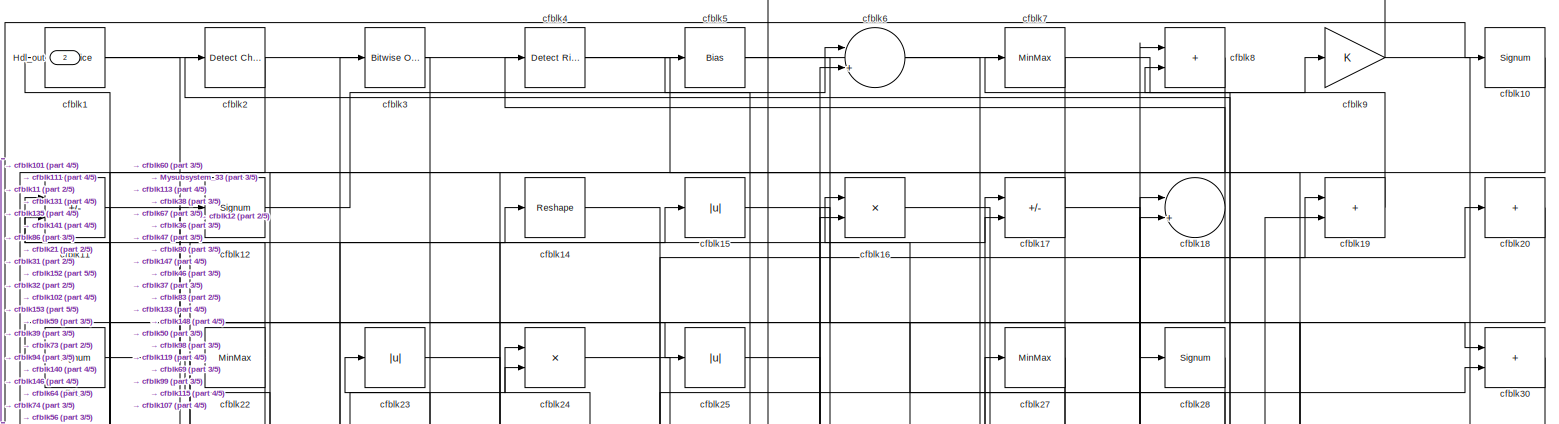
[diagram: root canvas - part 1/5, full width, top band]
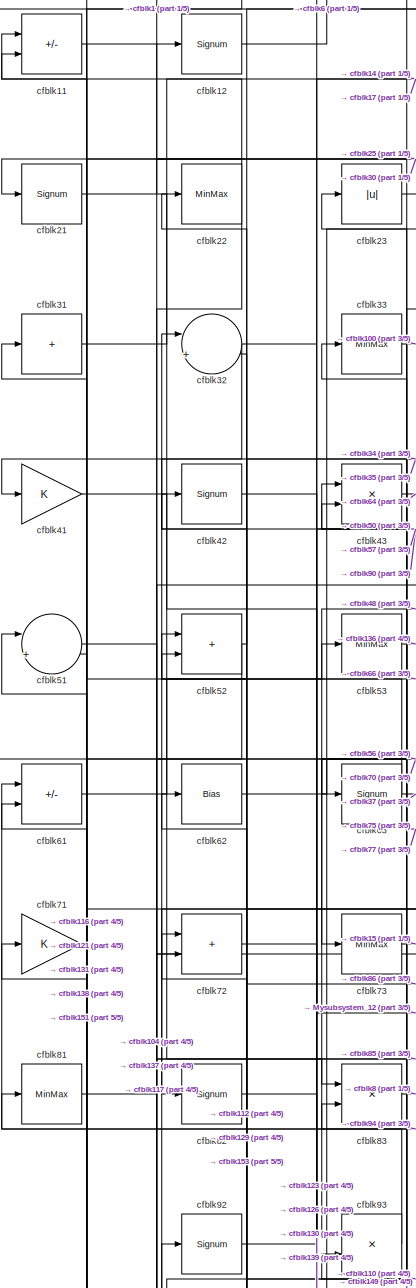
[diagram: root canvas - part 2/5, middle left region]
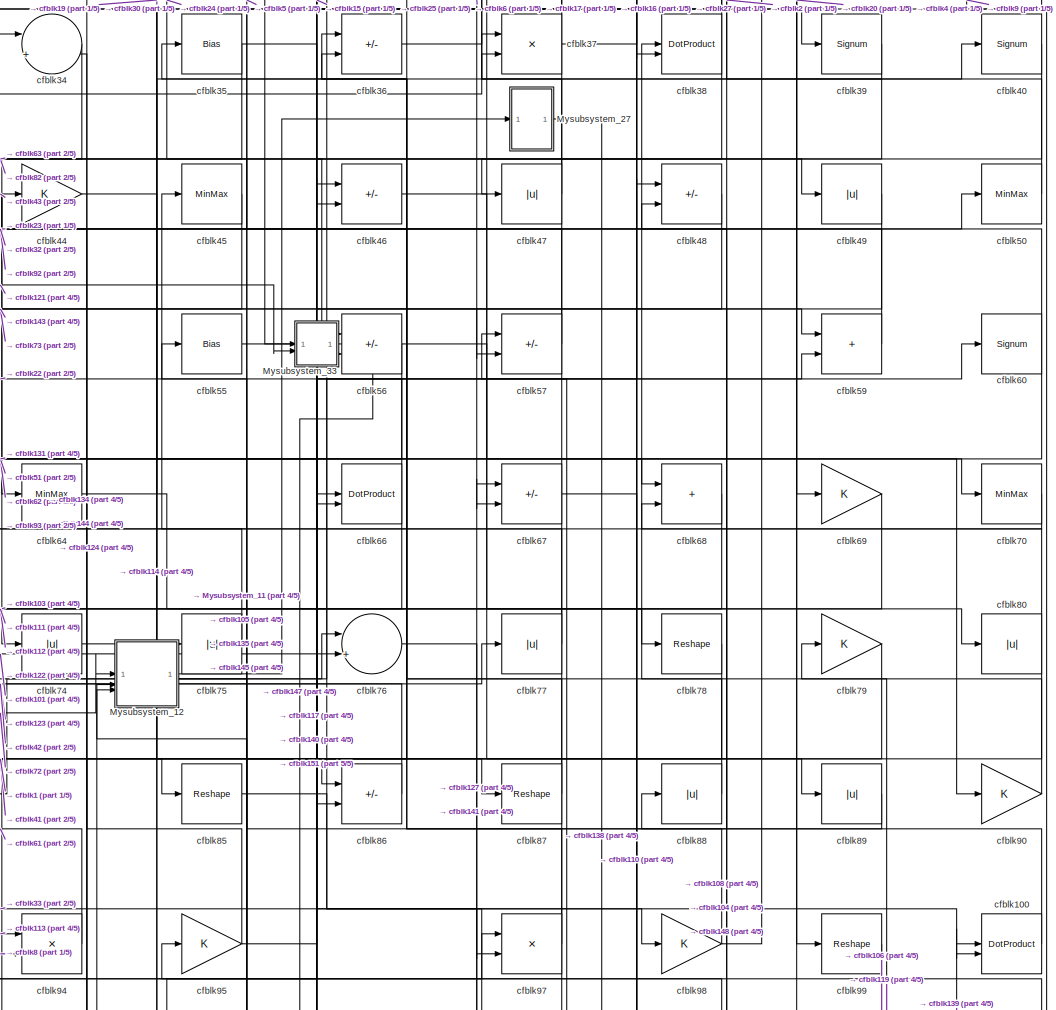
[diagram: root canvas - part 3/5, central region]
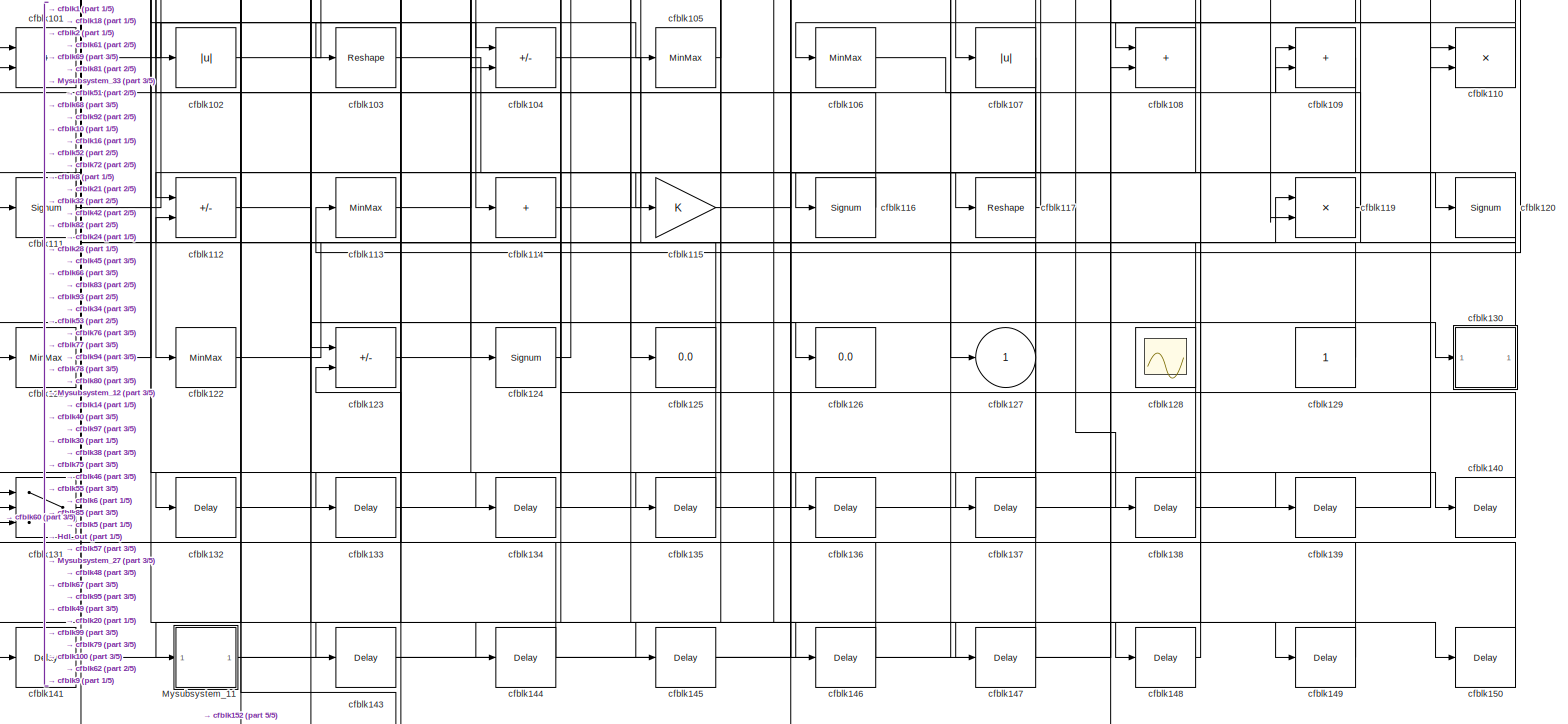
[diagram: root canvas - part 4/5, full width, bottom band]
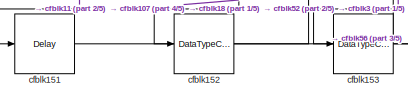
[diagram: root canvas - part 5/5, bottom left region]
MODEL slx_5dc51c0c0933
KIND model
CONFIG AbsTol = auto
CONFIG EnableMultiTasking = off
CONFIG FixedStep = auto
CONFIG MaxStep = auto
CONFIG MinStep = auto
CONFIG RelTol = 1e-3
CONFIG SampleTimeConstraint = Unconstrained
CONFIG SolverName = VariableStepAuto
CONFIG StartTime = 0.0
CONFIG StopTime = 10.0
BLOCK [Outport] Hdl_out
  OutDataTypeStr = uint8
  Port = 2
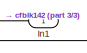
[diagram: Mysubsystem_11 - part 1/3, top center region]
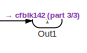
[diagram: Mysubsystem_11 - part 2/3, top right region]
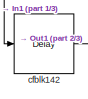
[diagram: Mysubsystem_11 - part 3/3, bottom left region]
BLOCK [SubSystem] Mysubsystem_11
  RTWFcnName = Mysubsystem_11
  RTWFcnNameOpts = User specified
  RTWFileNameOpts = Use function name
  RTWSystemCode = Reusable function
  TreatAsAtomicUnit = on
BLOCK [Inport] Mysubsystem_11/In1
BLOCK [Outport] Mysubsystem_11/Out1
BLOCK [Delay] Mysubsystem_11/cfblk142
  InputPortMap = u0
  SampleTime = 1
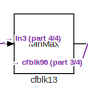
[diagram: Mysubsystem_12 - part 1/4, top left region]
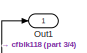
[diagram: Mysubsystem_12 - part 2/4, top right region]
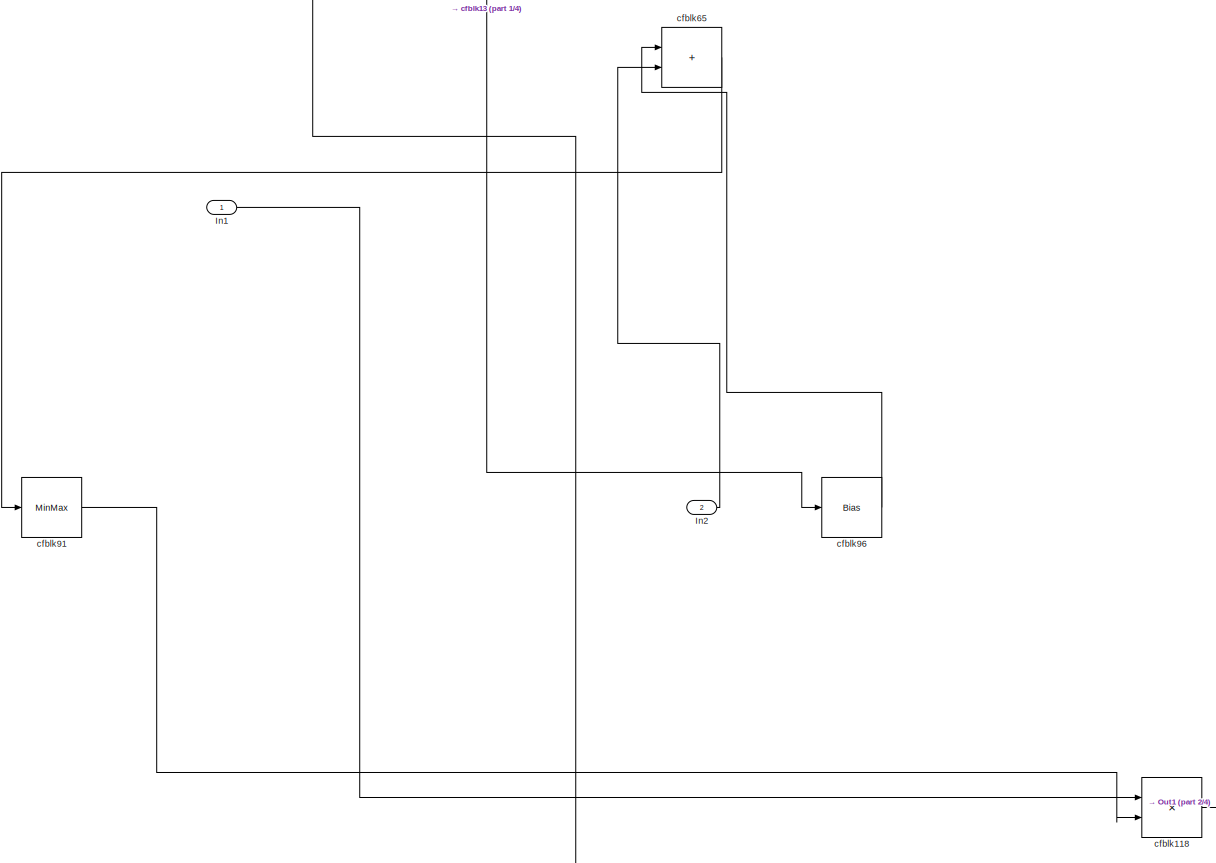
[diagram: Mysubsystem_12 - part 3/4, full width, bottom band]
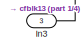
[diagram: Mysubsystem_12 - part 4/4, bottom center region]
BLOCK [SubSystem] Mysubsystem_12
  RTWFcnName = Mysubsystem_12
  RTWFcnNameOpts = User specified
  RTWFileNameOpts = Use function name
  RTWSystemCode = Reusable function
  TreatAsAtomicUnit = on
BLOCK [Inport] Mysubsystem_12/In1
BLOCK [Inport] Mysubsystem_12/In2
  Port = 2
BLOCK [Inport] Mysubsystem_12/In3
  Port = 3
BLOCK [Outport] Mysubsystem_12/Out1
BLOCK [Product] Mysubsystem_12/cfblk118
  Inputs = */
  RndMeth = Zero
  SaturateOnIntegerOverflow = on
BLOCK [MinMax] Mysubsystem_12/cfblk13
BLOCK [Sum] Mysubsystem_12/cfblk65
  IconShape = rectangular
BLOCK [MinMax] Mysubsystem_12/cfblk91
BLOCK [Bias] Mysubsystem_12/cfblk96
  Bias = 0.0
  SaturateOnIntegerOverflow = off
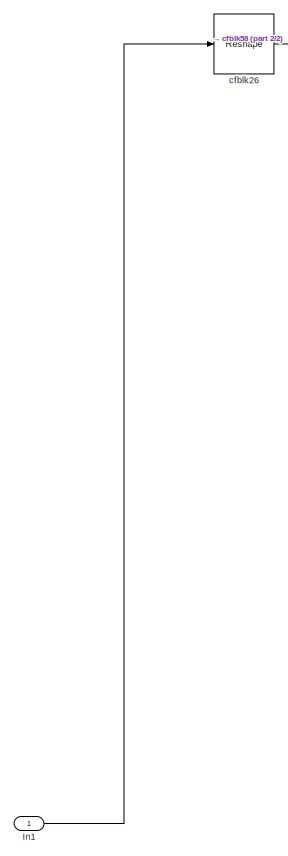
[diagram: Mysubsystem_27 - part 1/2, top left region]
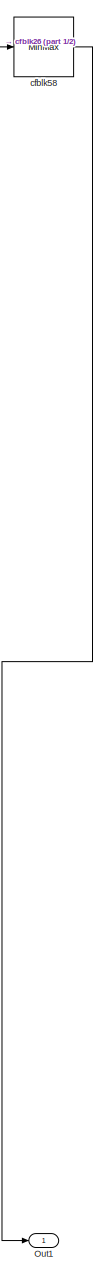
[diagram: Mysubsystem_27 - part 2/2, right side, full height]
BLOCK [SubSystem] Mysubsystem_27
  RTWFcnName = Mysubsystem_27
  RTWFcnNameOpts = User specified
  RTWFileNameOpts = Use function name
  RTWSystemCode = Reusable function
  TreatAsAtomicUnit = on
BLOCK [Inport] Mysubsystem_27/In1
BLOCK [Outport] Mysubsystem_27/Out1
BLOCK [Reshape] Mysubsystem_27/cfblk26
BLOCK [MinMax] Mysubsystem_27/cfblk58
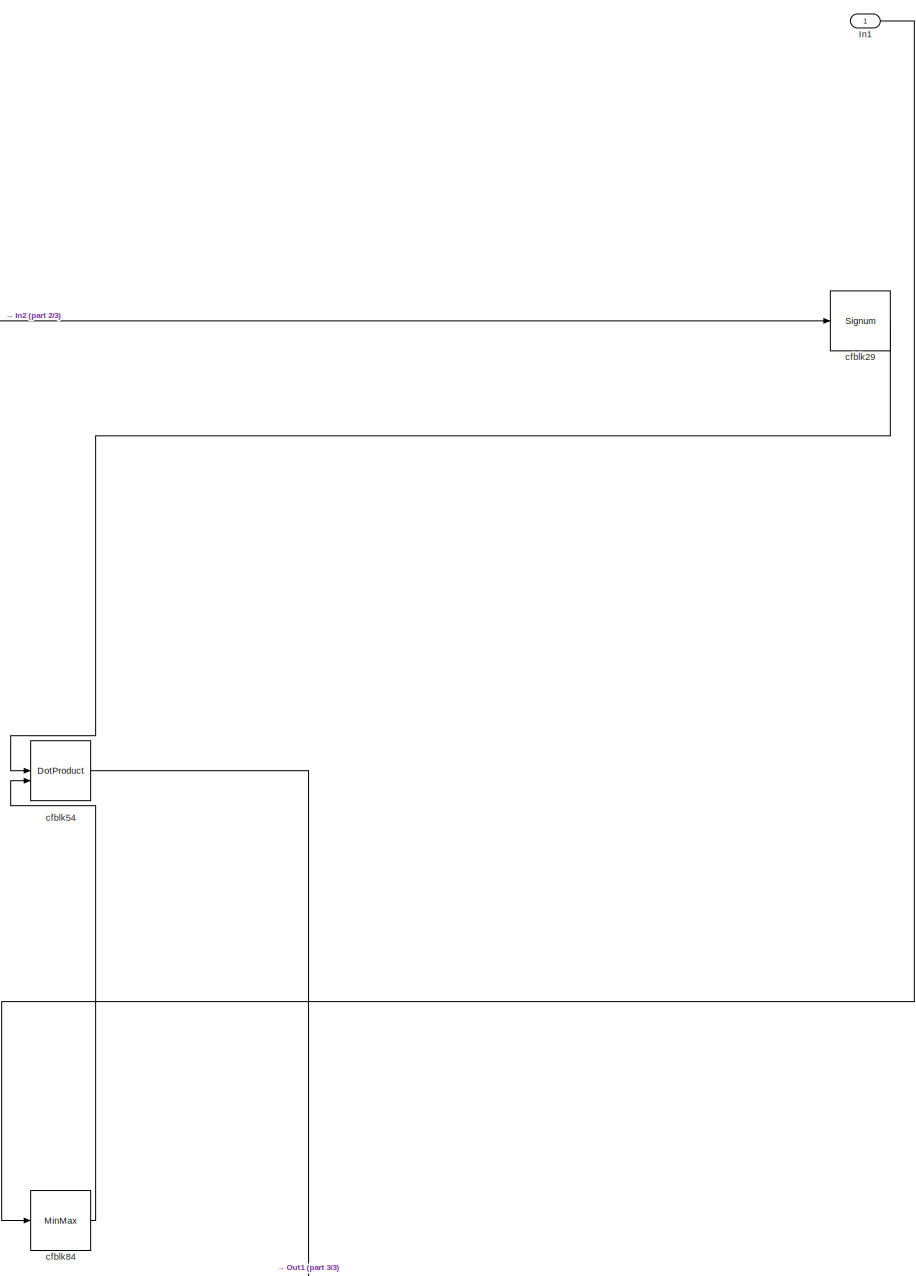
[diagram: Mysubsystem_33 - part 1/3, top center region]
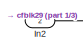
[diagram: Mysubsystem_33 - part 2/3, bottom left region]
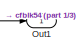
[diagram: Mysubsystem_33 - part 3/3, bottom right region]
BLOCK [SubSystem] Mysubsystem_33
  RTWFcnName = Mysubsystem_33
  RTWFcnNameOpts = User specified
  RTWFileNameOpts = Use function name
  RTWSystemCode = Reusable function
  TreatAsAtomicUnit = on
BLOCK [Inport] Mysubsystem_33/In1
BLOCK [Inport] Mysubsystem_33/In2
  Port = 2
BLOCK [Outport] Mysubsystem_33/Out1
BLOCK [Signum] Mysubsystem_33/cfblk29
BLOCK [DotProduct] Mysubsystem_33/cfblk54
  OutDataTypeStr = Inherit: Inherit via internal rule
BLOCK [MinMax] Mysubsystem_33/cfblk84
BLOCK [Reference] cfblk1  REF=hdlsllib/Logic and Bit
Operations/Bit Slice
  SourceBlock = hdlsllib/Logic and Bit\nOperations/Bit Slice
  SourceType = Bit Slice
BLOCK [Signum] cfblk10
BLOCK [DotProduct] cfblk100
  OutDataTypeStr = uint8
BLOCK [Sum] cfblk101
  IconShape = rectangular
  OutDataTypeStr = uint8
BLOCK [Abs] cfblk102
  OutDataTypeStr = uint8
  SaturateOnIntegerOverflow = off
BLOCK [Reshape] cfblk103
BLOCK [Sum] cfblk104
  IconShape = rectangular
  Inputs = +-
  OutDataTypeStr = uint8
BLOCK [MinMax] cfblk105
  OutDataTypeStr = uint8
BLOCK [MinMax] cfblk106
  OutDataTypeStr = uint8
BLOCK [Abs] cfblk107
  OutDataTypeStr = uint8
  SaturateOnIntegerOverflow = off
BLOCK [Sum] cfblk108
  IconShape = rectangular
  OutDataTypeStr = uint8
BLOCK [Sum] cfblk109
  IconShape = rectangular
  OutDataTypeStr = uint8
BLOCK [Sum] cfblk11
  IconShape = rectangular
  Inputs = +-
  OutDataTypeStr = uint8
BLOCK [Product] cfblk110
  Inputs = */
  OutDataTypeStr = uint8
  RndMeth = Zero
  SaturateOnIntegerOverflow = on
BLOCK [Signum] cfblk111
BLOCK [Sum] cfblk112
  IconShape = rectangular
  Inputs = +-
  OutDataTypeStr = uint8
BLOCK [MinMax] cfblk113
  OutDataTypeStr = uint8
BLOCK [Sum] cfblk114
  IconShape = rectangular
  Inputs = +
  OutDataTypeStr = uint8
BLOCK [Gain] cfblk115
  OutDataTypeStr = uint8
BLOCK [Signum] cfblk116
BLOCK [Reshape] cfblk117
BLOCK [Product] cfblk119
  Inputs = */
  OutDataTypeStr = uint8
  RndMeth = Zero
  SaturateOnIntegerOverflow = on
BLOCK [Signum] cfblk12
BLOCK [Signum] cfblk120
BLOCK [MinMax] cfblk121
  OutDataTypeStr = uint8
BLOCK [MinMax] cfblk122
  OutDataTypeStr = uint8
BLOCK [Sum] cfblk123
  IconShape = rectangular
  Inputs = +-
  OutDataTypeStr = uint8
BLOCK [Signum] cfblk124
BLOCK [Display] cfblk125
  Decimation = 1
BLOCK [Display] cfblk126
  Decimation = 1
BLOCK [Outport] cfblk127
  OutDataTypeStr = uint8
  VectorParamsAs1DForOutWhenUnconnected = off
BLOCK [Scope] cfblk128
  Floating = on
  NumInputPorts = 1
  ScopeSpecificationString = Simulink.scopes.TimeScopeBlockCfg('CurrentConfiguration', extmgr.ConfigurationSet(extmgr.Configuration('Core','General UI',true,'FigureColor',[0.156862745098039 0.156862745098039 0.156862745098039]),extmgr.Configuration('Core','Source UI',true),extmgr.Configuration('Sources','WiredSimulink',true,'DataLoggingVariableName','ScopeData1','DataLoggingSaveFormat','StructureWithTime','DataLoggingLimitDat...<+2713ch>
BLOCK [Constant] cfblk129
  OutDataTypeStr = uint8
  SampleTime = -1
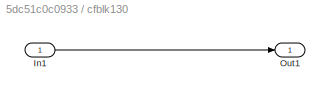
BLOCK [SubSystem] cfblk130
  LibrarySourceBlock = hdlsllib/Ports &\nSubsystems/Subsystem
BLOCK [Inport] cfblk130/In1
BLOCK [Outport] cfblk130/Out1
BLOCK [Switch] cfblk131
  InputSameDT = off
  OutDataTypeStr = uint8
  SaturateOnIntegerOverflow = off
BLOCK [Delay] cfblk132
  InputPortMap = u0
  SampleTime = 1
BLOCK [Delay] cfblk133
  InputPortMap = u0
  SampleTime = 1
BLOCK [Delay] cfblk134
  InputPortMap = u0
  SampleTime = 1
BLOCK [Delay] cfblk135
  InputPortMap = u0
  SampleTime = 1
BLOCK [Delay] cfblk136
  InputPortMap = u0
  SampleTime = 1
BLOCK [Delay] cfblk137
  InputPortMap = u0
  SampleTime = 1
BLOCK [Delay] cfblk138
  InputPortMap = u0
  SampleTime = 1
BLOCK [Delay] cfblk139
  InputPortMap = u0
  SampleTime = 1
BLOCK [Reshape] cfblk14
BLOCK [Delay] cfblk140
  InputPortMap = u0
  SampleTime = 1
BLOCK [Delay] cfblk141
  InputPortMap = u0
  SampleTime = 1
BLOCK [Delay] cfblk143
  InputPortMap = u0
  SampleTime = 1
BLOCK [Delay] cfblk144
  InputPortMap = u0
  SampleTime = 1
BLOCK [Delay] cfblk145
  InputPortMap = u0
  SampleTime = 1
BLOCK [Delay] cfblk146
  InputPortMap = u0
  SampleTime = 1
BLOCK [Delay] cfblk147
  InputPortMap = u0
  SampleTime = 1
BLOCK [Delay] cfblk148
  InputPortMap = u0
  SampleTime = 1
BLOCK [Delay] cfblk149
  InputPortMap = u0
  SampleTime = 1
BLOCK [Abs] cfblk15
  OutDataTypeStr = uint8
  SaturateOnIntegerOverflow = off
BLOCK [Delay] cfblk150
  InputPortMap = u0
  SampleTime = 1
BLOCK [Delay] cfblk151
  InputPortMap = u0
  SampleTime = 1
BLOCK [DataTypeConversion] cfblk152
  OutDataTypeStr = uint8
  RndMeth = Floor
  SaturateOnIntegerOverflow = off
BLOCK [DataTypeConversion] cfblk153
  OutDataTypeStr = uint8
  RndMeth = Floor
  SaturateOnIntegerOverflow = off
BLOCK [Product] cfblk16
  Inputs = */
  OutDataTypeStr = uint8
  RndMeth = Zero
  SaturateOnIntegerOverflow = on
BLOCK [Sum] cfblk17
  IconShape = rectangular
  Inputs = +-
  OutDataTypeStr = uint8
BLOCK [Sum] cfblk18
  Inputs = |++
  OutDataTypeStr = uint8
BLOCK [Sum] cfblk19
  IconShape = rectangular
  OutDataTypeStr = uint8
BLOCK [Reference] cfblk2  REF=simulink/Logic and Bit
Operations/Detect
Change
  LibrarySourceBlock = hdlsllib/Logic and Bit\nOperations/Detect\nChange
  SourceBlock = simulink/Logic and Bit\nOperations/Detect\nChange
  SourceType = Detect Change
BLOCK [Sum] cfblk20
  IconShape = rectangular
  Inputs = +
  OutDataTypeStr = uint8
BLOCK [Signum] cfblk21
BLOCK [MinMax] cfblk22
  OutDataTypeStr = uint8
BLOCK [Abs] cfblk23
  OutDataTypeStr = uint8
  SaturateOnIntegerOverflow = off
BLOCK [Product] cfblk24
  Inputs = */
  OutDataTypeStr = uint8
  RndMeth = Zero
  SaturateOnIntegerOverflow = on
BLOCK [Abs] cfblk25
  OutDataTypeStr = uint8
  SaturateOnIntegerOverflow = off
BLOCK [MinMax] cfblk27
  OutDataTypeStr = uint8
BLOCK [Signum] cfblk28
BLOCK [Reference] cfblk3  REF=simulink/Logic and Bit
Operations/Bitwise
Operator
  LibrarySourceBlock = hdlsllib/Logic and Bit\nOperations/Bitwise\nOperator
  SourceBlock = simulink/Logic and Bit\nOperations/Bitwise\nOperator
  SourceType = Bitwise Operator
BLOCK [Sum] cfblk30
  IconShape = rectangular
  OutDataTypeStr = uint8
BLOCK [Sum] cfblk31
  IconShape = rectangular
  Inputs = +
  OutDataTypeStr = uint8
BLOCK [Sum] cfblk32
  Inputs = |++
  OutDataTypeStr = uint8
BLOCK [MinMax] cfblk33
  OutDataTypeStr = uint8
BLOCK [Sum] cfblk34
  Inputs = |++
  OutDataTypeStr = uint8
BLOCK [Bias] cfblk35
  Bias = 0.0
  SaturateOnIntegerOverflow = off
BLOCK [Sum] cfblk36
  IconShape = rectangular
  Inputs = +-
  OutDataTypeStr = uint8
BLOCK [Product] cfblk37
  Inputs = */
  OutDataTypeStr = uint8
  RndMeth = Zero
  SaturateOnIntegerOverflow = on
BLOCK [DotProduct] cfblk38
  OutDataTypeStr = uint8
BLOCK [Signum] cfblk39
BLOCK [Reference] cfblk4  REF=hdlsllib/Logic and Bit
Operations/Detect Rise
Nonnegative
  SourceBlock = hdlsllib/Logic and Bit\nOperations/Detect Rise\nNonnegative
  SourceType = Detect Rise Nonnegative
BLOCK [Signum] cfblk40
BLOCK [Gain] cfblk41
  OutDataTypeStr = uint8
BLOCK [Signum] cfblk42
BLOCK [Product] cfblk43
  Inputs = */
  OutDataTypeStr = uint8
  RndMeth = Zero
  SaturateOnIntegerOverflow = on
BLOCK [Gain] cfblk44
  OutDataTypeStr = uint8
BLOCK [MinMax] cfblk45
  OutDataTypeStr = uint8
BLOCK [Sum] cfblk46
  IconShape = rectangular
  Inputs = +-
  OutDataTypeStr = uint8
BLOCK [Abs] cfblk47
  OutDataTypeStr = uint8
  SaturateOnIntegerOverflow = off
BLOCK [Sum] cfblk48
  IconShape = rectangular
  Inputs = +-
  OutDataTypeStr = uint8
BLOCK [Abs] cfblk49
  OutDataTypeStr = uint8
  SaturateOnIntegerOverflow = off
BLOCK [Bias] cfblk5
  Bias = 0.0
  SaturateOnIntegerOverflow = off
BLOCK [MinMax] cfblk50
  OutDataTypeStr = uint8
BLOCK [Sum] cfblk51
  Inputs = |++
  OutDataTypeStr = uint8
BLOCK [Sum] cfblk52
  IconShape = rectangular
  OutDataTypeStr = uint8
BLOCK [MinMax] cfblk53
  OutDataTypeStr = uint8
BLOCK [Bias] cfblk55
  Bias = 0.0
  SaturateOnIntegerOverflow = off
BLOCK [Sum] cfblk56
  IconShape = rectangular
  Inputs = +-
  OutDataTypeStr = uint8
BLOCK [Sum] cfblk57
  IconShape = rectangular
  Inputs = +-
  OutDataTypeStr = uint8
BLOCK [Sum] cfblk59
  IconShape = rectangular
  OutDataTypeStr = uint8
BLOCK [Sum] cfblk6
  Inputs = |++
  OutDataTypeStr = uint8
BLOCK [Signum] cfblk60
BLOCK [Sum] cfblk61
  IconShape = rectangular
  Inputs = +-
  OutDataTypeStr = uint8
BLOCK [Bias] cfblk62
  Bias = 0.0
  SaturateOnIntegerOverflow = off
BLOCK [Signum] cfblk63
BLOCK [MinMax] cfblk64
  OutDataTypeStr = uint8
BLOCK [DotProduct] cfblk66
  OutDataTypeStr = uint8
BLOCK [Sum] cfblk67
  IconShape = rectangular
  Inputs = +-
  OutDataTypeStr = uint8
BLOCK [Sum] cfblk68
  IconShape = rectangular
  OutDataTypeStr = uint8
BLOCK [Gain] cfblk69
  OutDataTypeStr = uint8
BLOCK [MinMax] cfblk7
  OutDataTypeStr = uint8
BLOCK [MinMax] cfblk70
  OutDataTypeStr = uint8
BLOCK [Gain] cfblk71
  OutDataTypeStr = uint8
BLOCK [Sum] cfblk72
  IconShape = rectangular
  OutDataTypeStr = uint8
BLOCK [MinMax] cfblk73
  OutDataTypeStr = uint8
BLOCK [Abs] cfblk74
  OutDataTypeStr = uint8
  SaturateOnIntegerOverflow = off
BLOCK [Abs] cfblk75
  OutDataTypeStr = uint8
  SaturateOnIntegerOverflow = off
BLOCK [Sum] cfblk76
  Inputs = |++
  OutDataTypeStr = uint8
BLOCK [Abs] cfblk77
  OutDataTypeStr = uint8
  SaturateOnIntegerOverflow = off
BLOCK [Reshape] cfblk78
BLOCK [Gain] cfblk79
  OutDataTypeStr = uint8
BLOCK [Sum] cfblk8
  IconShape = rectangular
  OutDataTypeStr = uint8
BLOCK [Abs] cfblk80
  OutDataTypeStr = uint8
  SaturateOnIntegerOverflow = off
BLOCK [MinMax] cfblk81
  OutDataTypeStr = uint8
BLOCK [Signum] cfblk82
BLOCK [Product] cfblk83
  Inputs = */
  OutDataTypeStr = uint8
  RndMeth = Zero
  SaturateOnIntegerOverflow = on
BLOCK [Reshape] cfblk85
BLOCK [Sum] cfblk86
  IconShape = rectangular
  Inputs = +-
  OutDataTypeStr = uint8
BLOCK [Reshape] cfblk87
BLOCK [Abs] cfblk88
  OutDataTypeStr = uint8
  SaturateOnIntegerOverflow = off
BLOCK [Abs] cfblk89
  OutDataTypeStr = uint8
  SaturateOnIntegerOverflow = off
BLOCK [Gain] cfblk9
  OutDataTypeStr = uint8
BLOCK [Gain] cfblk90
  OutDataTypeStr = uint8
BLOCK [Signum] cfblk92
BLOCK [Product] cfblk93
  Inputs = */
  OutDataTypeStr = uint8
  RndMeth = Zero
  SaturateOnIntegerOverflow = on
BLOCK [Product] cfblk94
  Inputs = */
  OutDataTypeStr = uint8
  RndMeth = Zero
  SaturateOnIntegerOverflow = on
BLOCK [Gain] cfblk95
  OutDataTypeStr = uint8
BLOCK [Product] cfblk97
  Inputs = */
  OutDataTypeStr = uint8
  RndMeth = Zero
  SaturateOnIntegerOverflow = on
BLOCK [Gain] cfblk98
  OutDataTypeStr = uint8
BLOCK [Reshape] cfblk99
LINE Mysubsystem_11/In1:1 -> Mysubsystem_11/cfblk142:1
LINE Mysubsystem_11/cfblk142:1 -> Mysubsystem_11/Out1:1
LINE Mysubsystem_11:1 -> cfblk48:1
LINE Mysubsystem_12/In1:1 -> Mysubsystem_12/cfblk118:1
LINE Mysubsystem_12/In2:1 -> Mysubsystem_12/cfblk65:2
LINE Mysubsystem_12/In3:1 -> Mysubsystem_12/cfblk13:1
LINE Mysubsystem_12/cfblk118:1 -> Mysubsystem_12/Out1:1
LINE Mysubsystem_12/cfblk13:1 -> Mysubsystem_12/cfblk96:1
LINE Mysubsystem_12/cfblk65:1 -> Mysubsystem_12/cfblk91:1
LINE Mysubsystem_12/cfblk91:1 -> Mysubsystem_12/cfblk118:2
LINE Mysubsystem_12/cfblk96:1 -> Mysubsystem_12/cfblk65:1
LINE Mysubsystem_12:1 -> Mysubsystem_27:1
LINE Mysubsystem_27/In1:1 -> Mysubsystem_27/cfblk26:1
LINE Mysubsystem_27/cfblk26:1 -> Mysubsystem_27/cfblk58:1
LINE Mysubsystem_27/cfblk58:1 -> Mysubsystem_27/Out1:1
LINE Mysubsystem_27:1 -> cfblk138:1
LINE Mysubsystem_33/In1:1 -> Mysubsystem_33/cfblk84:1
LINE Mysubsystem_33/In2:1 -> Mysubsystem_33/cfblk29:1
LINE Mysubsystem_33/cfblk29:1 -> Mysubsystem_33/cfblk54:1
LINE Mysubsystem_33/cfblk54:1 -> Mysubsystem_33/Out1:1
LINE Mysubsystem_33/cfblk84:1 -> Mysubsystem_33/cfblk54:2
LINE Mysubsystem_33:1 -> cfblk147:1
NET cfblk100:1 -> cfblk36:2, cfblk48:2
NET cfblk101:1 -> cfblk105:1, cfblk150:1, cfblk76:2
LINE cfblk102:1 -> cfblk24:1
NET cfblk103:1 -> cfblk125:1, cfblk76:1
LINE cfblk104:1 -> cfblk119:1
LINE cfblk105:1 -> cfblk75:1
LINE cfblk106:1 -> cfblk109:1
LINE cfblk107:1 -> cfblk152:1
NET cfblk108:1 -> cfblk132:1, cfblk95:1
LINE cfblk109:1 -> cfblk134:1
LINE cfblk10:1 -> cfblk101:2
NET cfblk110:1 -> cfblk108:1, cfblk62:1
NET cfblk111:1 -> cfblk10:1, cfblk16:2
NET cfblk112:1 -> cfblk149:1, cfblk72:1
LINE cfblk113:1 -> cfblk94:1
NET cfblk114:1 -> cfblk40:1, cfblk97:1
LINE cfblk115:1 -> cfblk120:1
LINE cfblk116:1 -> cfblk61:2
NET cfblk117:1 -> cfblk57:1, cfblk92:1
LINE cfblk119:1 -> cfblk79:1
NET cfblk11:1 -> cfblk151:1, cfblk30:1
NET cfblk120:1 -> cfblk112:2, cfblk116:1
LINE cfblk121:1 -> Mysubsystem_33:2
LINE cfblk122:1 -> cfblk34:1
NET cfblk123:1 -> cfblk124:1, cfblk77:1
LINE cfblk124:1 -> Mysubsystem_12:3
LINE cfblk129:1 -> cfblk52:1
LINE cfblk12:1 -> cfblk6:1
LINE cfblk130/In1:1 -> cfblk130/Out1:1
LINE cfblk130:1 -> cfblk109:2
LINE cfblk131:1 -> cfblk81:1
LINE cfblk132:1 -> cfblk110:1
LINE cfblk133:1 -> cfblk6:2
LINE cfblk134:1 -> cfblk34:2
LINE cfblk135:1 -> cfblk1:1
LINE cfblk136:1 -> cfblk108:2
LINE cfblk137:1 -> cfblk93:2
LINE cfblk138:1 -> cfblk51:1
LINE cfblk139:1 -> cfblk100:1
LINE cfblk140:1 -> cfblk24:2
LINE cfblk141:1 -> cfblk67:1
LINE cfblk143:1 -> cfblk46:1
LINE cfblk144:1 -> cfblk123:2
LINE cfblk145:1 -> cfblk66:1
LINE cfblk146:1 -> cfblk101:1
NET cfblk147:1 -> Hdl_out:1, cfblk18:1
LINE cfblk148:1 -> cfblk8:2
LINE cfblk149:1 -> cfblk83:2
LINE cfblk14:1 -> cfblk146:1
LINE cfblk150:1 -> cfblk131:2
LINE cfblk151:1 -> cfblk56:2
LINE cfblk152:1 -> cfblk3:1
NET cfblk153:1 -> cfblk18:2, cfblk52:2
NET cfblk15:1 -> cfblk59:1, cfblk69:1
LINE cfblk16:1 -> cfblk80:1
LINE cfblk17:1 -> cfblk28:1
NET cfblk18:1 -> cfblk131:1, cfblk4:1
LINE cfblk19:1 -> cfblk7:1
NET cfblk1:1 -> cfblk12:1, cfblk86:2
NET cfblk20:1 -> cfblk119:2, cfblk86:1
NET cfblk21:1 -> cfblk123:1, cfblk25:1
NET cfblk22:1 -> cfblk11:2, cfblk21:1, cfblk72:2
LINE cfblk23:1 -> cfblk39:1
LINE cfblk24:1 -> cfblk56:1
LINE cfblk25:1 -> cfblk38:2
LINE cfblk27:1 -> cfblk46:2
LINE cfblk28:1 -> cfblk133:1
LINE cfblk2:1 -> cfblk141:1
LINE cfblk30:1 -> cfblk115:1
LINE cfblk31:1 -> cfblk17:2
NET cfblk32:1 -> cfblk126:1, cfblk14:1, cfblk41:1
LINE cfblk33:1 -> cfblk100:2
LINE cfblk34:1 -> cfblk63:1
NET cfblk35:1 -> cfblk49:1, cfblk82:1, cfblk98:1
LINE cfblk36:1 -> cfblk17:1
LINE cfblk37:1 -> cfblk20:1
NET cfblk38:1 -> Mysubsystem_11:1, cfblk145:1, cfblk16:1
NET cfblk39:1 -> cfblk37:2, cfblk47:1
LINE cfblk3:1 -> cfblk153:1
LINE cfblk40:1 -> cfblk74:1
LINE cfblk41:1 -> cfblk85:1
LINE cfblk42:1 -> cfblk130:1
LINE cfblk43:1 -> cfblk64:1
LINE cfblk44:1 -> cfblk68:1
LINE cfblk45:1 -> cfblk143:1
LINE cfblk46:1 -> cfblk89:1
LINE cfblk47:1 -> cfblk27:1
NET cfblk48:1 -> cfblk57:2, cfblk73:1
NET cfblk49:1 -> cfblk104:2, cfblk148:1
LINE cfblk4:1 -> cfblk99:1
LINE cfblk50:1 -> cfblk2:1
NET cfblk51:1 -> cfblk137:1, cfblk66:2
NET cfblk52:1 -> cfblk121:1, cfblk32:2
LINE cfblk53:1 -> cfblk136:1
NET cfblk55:1 -> cfblk117:1, cfblk140:1
NET cfblk56:1 -> cfblk90:1, cfblk93:1
LINE cfblk57:1 -> cfblk32:1
LINE cfblk59:1 -> cfblk23:1
LINE cfblk5:1 -> cfblk107:1
NET cfblk60:1 -> cfblk131:3, cfblk5:1
LINE cfblk61:1 -> cfblk53:1
LINE cfblk62:1 -> cfblk70:1
NET cfblk63:1 -> cfblk31:1, cfblk37:1
NET cfblk64:1 -> cfblk30:2, cfblk78:1
NET cfblk66:1 -> cfblk103:1, cfblk112:1, cfblk22:1
LINE cfblk67:1 -> cfblk110:2
LINE cfblk68:1 -> cfblk122:1
LINE cfblk69:1 -> cfblk111:1
LINE cfblk6:1 -> cfblk67:2
LINE cfblk70:1 -> cfblk68:2
LINE cfblk71:1 -> cfblk11:1
LINE cfblk72:1 -> Mysubsystem_12:1
LINE cfblk73:1 -> cfblk15:1
NET cfblk74:1 -> cfblk19:1, cfblk87:1
LINE cfblk75:1 -> cfblk43:2
LINE cfblk76:1 -> cfblk97:2
LINE cfblk77:1 -> cfblk33:1
LINE cfblk78:1 -> cfblk114:1
LINE cfblk79:1 -> cfblk135:1
LINE cfblk7:1 -> cfblk9:1
NET cfblk80:1 -> cfblk144:1, cfblk45:1
NET cfblk81:1 -> cfblk104:1, cfblk83:1
LINE cfblk82:1 -> cfblk139:1
LINE cfblk83:1 -> cfblk8:1
NET cfblk85:1 -> cfblk127:1, cfblk59:2
LINE cfblk86:1 -> cfblk42:1
LINE cfblk87:1 -> cfblk35:1
LINE cfblk88:1 -> cfblk38:1
LINE cfblk89:1 -> cfblk88:1
NET cfblk8:1 -> cfblk102:1, cfblk94:2
LINE cfblk90:1 -> cfblk43:1
LINE cfblk92:1 -> cfblk50:1
NET cfblk93:1 -> cfblk51:2, cfblk71:1
LINE cfblk94:1 -> cfblk61:1
NET cfblk95:1 -> Mysubsystem_12:2, cfblk44:1, cfblk60:1
LINE cfblk97:1 -> cfblk36:1
NET cfblk98:1 -> cfblk19:2, cfblk55:1
LINE cfblk99:1 -> cfblk106:1
NET cfblk9:1 -> Mysubsystem_33:1, cfblk113:1
note: NET lines group one-source signal fan-out (src -> all destinations, sorted); 1:1 wires keep LINE
